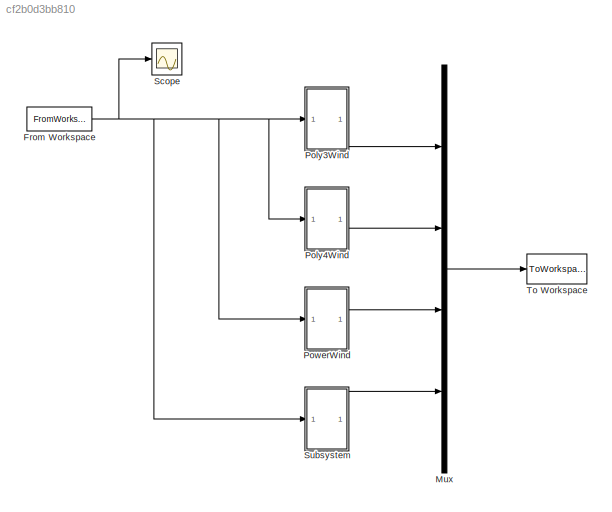
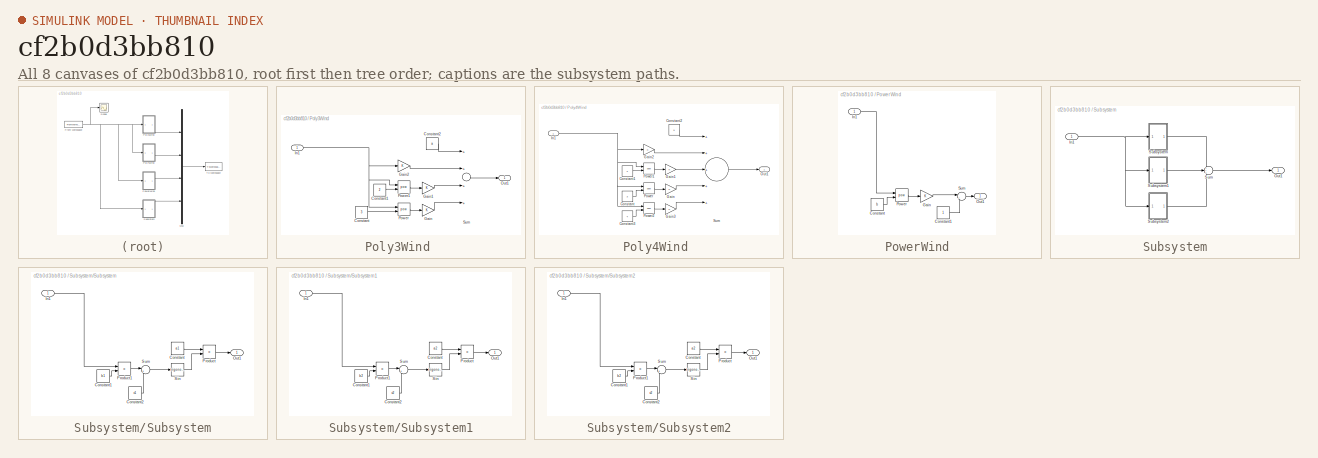
[diagram: thumbnail index - all 8 canvases of the model, root first then tree order]
MODEL slx_cf2b0d3bb810
KIND model
CONFIG AbsTol = auto
CONFIG EnableMultiTasking = off
CONFIG FixedStep = 0.01
CONFIG MaxStep = auto
CONFIG MinStep = auto
CONFIG RelTol = 1e-3
CONFIG SampleTimeConstraint = Unconstrained
CONFIG Solver = FixedStepAuto
CONFIG SolverName = FixedStepAuto
CONFIG StartTime = 0.0
CONFIG StopTime = WIND(end,1)
BLOCK [FromWorkspace] From Workspace
  VariableName = WIND
  ZeroCross = on
BLOCK [Mux] Mux
  DisplayOption = bar
  Ports = [4, 1]
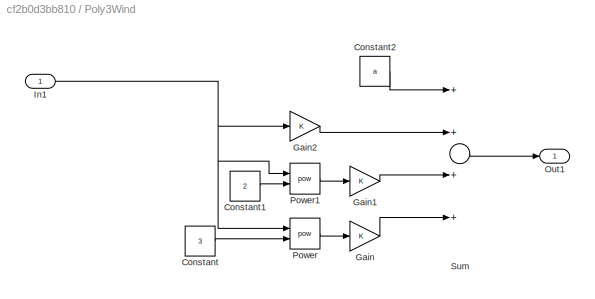
BLOCK [SubSystem] Poly3Wind 
  Ports = [1, 1]
  RequestExecContextInheritance = off
BLOCK [Constant] Poly3Wind /Constant
  Value = 3
BLOCK [Constant] Poly3Wind /Constant1
  Value = 2
BLOCK [Constant] Poly3Wind /Constant2
  Value = a
BLOCK [Gain] Poly3Wind /Gain
  OutDataTypeStr = Inherit: Inherit via internal rule
  ParamDataTypeStr = Inherit: Inherit via internal rule
  SaturateOnIntegerOverflow = off
BLOCK [Gain] Poly3Wind /Gain1
  OutDataTypeStr = Inherit: Inherit via internal rule
  ParamDataTypeStr = Inherit: Inherit via internal rule
  SaturateOnIntegerOverflow = off
BLOCK [Gain] Poly3Wind /Gain2
  OutDataTypeStr = Inherit: Inherit via internal rule
  ParamDataTypeStr = Inherit: Inherit via internal rule
  SaturateOnIntegerOverflow = off
BLOCK [Inport] Poly3Wind /In1
  IconDisplay = Port number
BLOCK [Outport] Poly3Wind /Out1
  IconDisplay = Port number
BLOCK [Math] Poly3Wind /Power
  Operator = pow
  Ports = [2, 1]
BLOCK [Math] Poly3Wind /Power1
  Operator = pow
  Ports = [2, 1]
BLOCK [Sum] Poly3Wind /Sum
  InputSameDT = off
  Inputs = ++++
  OutDataTypeStr = Inherit: Inherit via internal rule
  Ports = [4, 1]
  SaturateOnIntegerOverflow = off
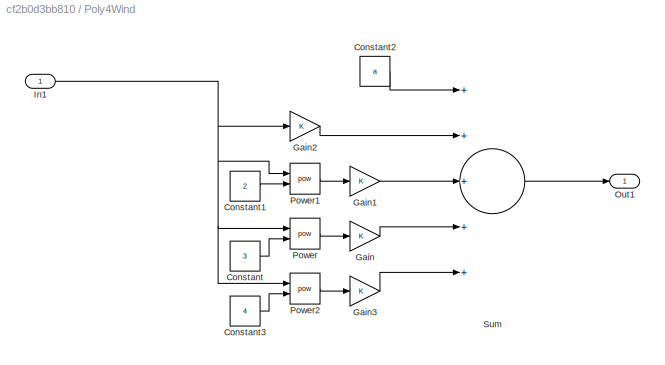
BLOCK [SubSystem] Poly4Wind 
  Ports = [1, 1]
  RequestExecContextInheritance = off
BLOCK [Constant] Poly4Wind /Constant
  Value = 3
BLOCK [Constant] Poly4Wind /Constant1
  Value = 2
BLOCK [Constant] Poly4Wind /Constant2
  Value = a
BLOCK [Constant] Poly4Wind /Constant3
  Value = 4
BLOCK [Gain] Poly4Wind /Gain
  OutDataTypeStr = Inherit: Inherit via internal rule
  ParamDataTypeStr = Inherit: Inherit via internal rule
  SaturateOnIntegerOverflow = off
BLOCK [Gain] Poly4Wind /Gain1
  OutDataTypeStr = Inherit: Inherit via internal rule
  ParamDataTypeStr = Inherit: Inherit via internal rule
  SaturateOnIntegerOverflow = off
BLOCK [Gain] Poly4Wind /Gain2
  OutDataTypeStr = Inherit: Inherit via internal rule
  ParamDataTypeStr = Inherit: Inherit via internal rule
  SaturateOnIntegerOverflow = off
BLOCK [Gain] Poly4Wind /Gain3
  OutDataTypeStr = Inherit: Inherit via internal rule
  ParamDataTypeStr = Inherit: Inherit via internal rule
  SaturateOnIntegerOverflow = off
BLOCK [Inport] Poly4Wind /In1
  IconDisplay = Port number
BLOCK [Outport] Poly4Wind /Out1
  IconDisplay = Port number
BLOCK [Math] Poly4Wind /Power
  Operator = pow
  Ports = [2, 1]
BLOCK [Math] Poly4Wind /Power1
  Operator = pow
  Ports = [2, 1]
BLOCK [Math] Poly4Wind /Power2
  Operator = pow
  Ports = [2, 1]
BLOCK [Sum] Poly4Wind /Sum
  InputSameDT = off
  Inputs = +++++
  OutDataTypeStr = Inherit: Inherit via internal rule
  Ports = [5, 1]
  SaturateOnIntegerOverflow = off
BLOCK [SubSystem] PowerWind
  Ports = [1, 1]
  RequestExecContextInheritance = off
BLOCK [Constant] PowerWind/Constant
  Value = b
BLOCK [Constant] PowerWind/Constant1
BLOCK [Gain] PowerWind/Gain
  OutDataTypeStr = Inherit: Inherit via internal rule
  ParamDataTypeStr = Inherit: Inherit via internal rule
  SaturateOnIntegerOverflow = off
BLOCK [Inport] PowerWind/In1
  IconDisplay = Port number
BLOCK [Outport] PowerWind/Out1
  IconDisplay = Port number
BLOCK [Math] PowerWind/Power
  Operator = pow
  Ports = [2, 1]
BLOCK [Sum] PowerWind/Sum
  IconShape = round
  InputSameDT = off
  Inputs = |++
  OutDataTypeStr = Inherit: Inherit via internal rule
  Ports = [2, 1]
  SaturateOnIntegerOverflow = off
BLOCK [Scope] Scope
  Floating = off
  NumInputPorts = 1
  Ports = [1]
  ScopeSpecificationString = Simulink.scopes.TimeScopeBlockCfg('CurrentConfiguration', extmgr.ConfigurationSet(extmgr.Configuration('Core','General UI',true),extmgr.Configuration('Core','Source UI',true),extmgr.Configuration('Sources','WiredSimulink',true),extmgr.Configuration('Visuals','Time Domain',true,'SerializedDisplays',{struct('MinYLimReal','109.5204','MaxYLimReal','285.61843','YLabelReal','','MinYLimMag','109.5204','M...<+1373ch>
BLOCK [SubSystem] Subsystem
  Ports = [1, 1]
  RequestExecContextInheritance = off
BLOCK [Inport] Subsystem/In1
  IconDisplay = Port number
BLOCK [Outport] Subsystem/Out1
  IconDisplay = Port number
BLOCK [SubSystem] Subsystem/Subsystem
  Ports = [1, 1]
  RequestExecContextInheritance = off
BLOCK [Constant] Subsystem/Subsystem/Constant
  Value = a1
BLOCK [Constant] Subsystem/Subsystem/Constant1
  Value = b1
BLOCK [Constant] Subsystem/Subsystem/Constant2
  Value = c1
BLOCK [Inport] Subsystem/Subsystem/In1
  IconDisplay = Port number
BLOCK [Outport] Subsystem/Subsystem/Out1
  IconDisplay = Port number
BLOCK [Product] Subsystem/Subsystem/Product
  InputSameDT = off
  OutDataTypeStr = Inherit: Inherit via internal rule
  Ports = [2, 1]
  RndMeth = Floor
  SaturateOnIntegerOverflow = off
BLOCK [Product] Subsystem/Subsystem/Product1
  InputSameDT = off
  OutDataTypeStr = Inherit: Inherit via internal rule
  Ports = [2, 1]
  RndMeth = Floor
  SaturateOnIntegerOverflow = off
BLOCK [Trigonometry] Subsystem/Subsystem/Sin
  Ports = [1, 1]
BLOCK [Sum] Subsystem/Subsystem/Sum
  IconShape = round
  InputSameDT = off
  Inputs = |++
  OutDataTypeStr = Inherit: Inherit via internal rule
  Ports = [2, 1]
  SaturateOnIntegerOverflow = off
BLOCK [SubSystem] Subsystem/Subsystem1
  Ports = [1, 1]
  RequestExecContextInheritance = off
BLOCK [Constant] Subsystem/Subsystem1/Constant
  Value = a2
BLOCK [Constant] Subsystem/Subsystem1/Constant1
  Value = b2
BLOCK [Constant] Subsystem/Subsystem1/Constant2
  Value = c2
BLOCK [Inport] Subsystem/Subsystem1/In1
  IconDisplay = Port number
BLOCK [Outport] Subsystem/Subsystem1/Out1
  IconDisplay = Port number
BLOCK [Product] Subsystem/Subsystem1/Product
  InputSameDT = off
  OutDataTypeStr = Inherit: Inherit via internal rule
  Ports = [2, 1]
  RndMeth = Floor
  SaturateOnIntegerOverflow = off
BLOCK [Product] Subsystem/Subsystem1/Product1
  InputSameDT = off
  OutDataTypeStr = Inherit: Inherit via internal rule
  Ports = [2, 1]
  RndMeth = Floor
  SaturateOnIntegerOverflow = off
BLOCK [Trigonometry] Subsystem/Subsystem1/Sin
  Ports = [1, 1]
BLOCK [Sum] Subsystem/Subsystem1/Sum
  IconShape = round
  InputSameDT = off
  Inputs = |++
  OutDataTypeStr = Inherit: Inherit via internal rule
  Ports = [2, 1]
  SaturateOnIntegerOverflow = off
BLOCK [SubSystem] Subsystem/Subsystem2
  Ports = [1, 1]
  RequestExecContextInheritance = off
BLOCK [Constant] Subsystem/Subsystem2/Constant
  Value = a2
BLOCK [Constant] Subsystem/Subsystem2/Constant1
  Value = b2
BLOCK [Constant] Subsystem/Subsystem2/Constant2
  Value = c2
BLOCK [Inport] Subsystem/Subsystem2/In1
  IconDisplay = Port number
BLOCK [Outport] Subsystem/Subsystem2/Out1
  IconDisplay = Port number
BLOCK [Product] Subsystem/Subsystem2/Product
  InputSameDT = off
  OutDataTypeStr = Inherit: Inherit via internal rule
  Ports = [2, 1]
  RndMeth = Floor
  SaturateOnIntegerOverflow = off
BLOCK [Product] Subsystem/Subsystem2/Product1
  InputSameDT = off
  OutDataTypeStr = Inherit: Inherit via internal rule
  Ports = [2, 1]
  RndMeth = Floor
  SaturateOnIntegerOverflow = off
BLOCK [Trigonometry] Subsystem/Subsystem2/Sin
  Ports = [1, 1]
BLOCK [Sum] Subsystem/Subsystem2/Sum
  IconShape = round
  InputSameDT = off
  Inputs = |++
  OutDataTypeStr = Inherit: Inherit via internal rule
  Ports = [2, 1]
  SaturateOnIntegerOverflow = off
BLOCK [Sum] Subsystem/Sum
  IconShape = round
  InputSameDT = off
  Inputs = +++
  OutDataTypeStr = Inherit: Inherit via internal rule
  Ports = [3, 1]
  SaturateOnIntegerOverflow = off
BLOCK [ToWorkspace] To Workspace
  MaxDataPoints = inf
  Ports = [1]
  SampleTime = -1
  Save2DSignal = 3-D array (concatenate along third dimension)
  VariableName = simout
NET From Workspace:1 -> Poly3Wind :1, Poly4Wind :1, PowerWind:1, Scope:1, Subsystem:1
LINE Mux:1 -> To Workspace:1
LINE Poly3Wind /Constant1:1 -> Poly3Wind /Power1:2
LINE Poly3Wind /Constant2:1 -> Poly3Wind /Sum:1
LINE Poly3Wind /Constant:1 -> Poly3Wind /Power:2
LINE Poly3Wind /Gain1:1 -> Poly3Wind /Sum:3
LINE Poly3Wind /Gain2:1 -> Poly3Wind /Sum:2
LINE Poly3Wind /Gain:1 -> Poly3Wind /Sum:4
NET Poly3Wind /In1:1 -> Poly3Wind /Gain2:1, Poly3Wind /Power1:1, Poly3Wind /Power:1
LINE Poly3Wind /Power1:1 -> Poly3Wind /Gain1:1
LINE Poly3Wind /Power:1 -> Poly3Wind /Gain:1
LINE Poly3Wind /Sum:1 -> Poly3Wind /Out1:1
LINE Poly3Wind :1 -> Mux:1
LINE Poly4Wind /Constant1:1 -> Poly4Wind /Power1:2
LINE Poly4Wind /Constant2:1 -> Poly4Wind /Sum:1
LINE Poly4Wind /Constant3:1 -> Poly4Wind /Power2:2
LINE Poly4Wind /Constant:1 -> Poly4Wind /Power:2
LINE Poly4Wind /Gain1:1 -> Poly4Wind /Sum:3
LINE Poly4Wind /Gain2:1 -> Poly4Wind /Sum:2
LINE Poly4Wind /Gain3:1 -> Poly4Wind /Sum:5
LINE Poly4Wind /Gain:1 -> Poly4Wind /Sum:4
NET Poly4Wind /In1:1 -> Poly4Wind /Gain2:1, Poly4Wind /Power1:1, Poly4Wind /Power2:1, Poly4Wind /Power:1
LINE Poly4Wind /Power1:1 -> Poly4Wind /Gain1:1
LINE Poly4Wind /Power2:1 -> Poly4Wind /Gain3:1
LINE Poly4Wind /Power:1 -> Poly4Wind /Gain:1
LINE Poly4Wind /Sum:1 -> Poly4Wind /Out1:1
LINE Poly4Wind :1 -> Mux:2
LINE PowerWind/Constant1:1 -> PowerWind/Sum:2
LINE PowerWind/Constant:1 -> PowerWind/Power:2
LINE PowerWind/Gain:1 -> PowerWind/Sum:1
LINE PowerWind/In1:1 -> PowerWind/Power:1
LINE PowerWind/Power:1 -> PowerWind/Gain:1
LINE PowerWind/Sum:1 -> PowerWind/Out1:1
LINE PowerWind:1 -> Mux:3
NET Subsystem/In1:1 -> Subsystem/Subsystem1:1, Subsystem/Subsystem2:1, Subsystem/Subsystem:1
LINE Subsystem/Subsystem/Constant1:1 -> Subsystem/Subsystem/Product1:2
LINE Subsystem/Subsystem/Constant2:1 -> Subsystem/Subsystem/Sum:2
LINE Subsystem/Subsystem/Constant:1 -> Subsystem/Subsystem/Product:1
LINE Subsystem/Subsystem/In1:1 -> Subsystem/Subsystem/Product1:1
LINE Subsystem/Subsystem/Product1:1 -> Subsystem/Subsystem/Sum:1
LINE Subsystem/Subsystem/Product:1 -> Subsystem/Subsystem/Out1:1
LINE Subsystem/Subsystem/Sin:1 -> Subsystem/Subsystem/Product:2
LINE Subsystem/Subsystem/Sum:1 -> Subsystem/Subsystem/Sin:1
LINE Subsystem/Subsystem1/Constant1:1 -> Subsystem/Subsystem1/Product1:2
LINE Subsystem/Subsystem1/Constant2:1 -> Subsystem/Subsystem1/Sum:2
LINE Subsystem/Subsystem1/Constant:1 -> Subsystem/Subsystem1/Product:1
LINE Subsystem/Subsystem1/In1:1 -> Subsystem/Subsystem1/Product1:1
LINE Subsystem/Subsystem1/Product1:1 -> Subsystem/Subsystem1/Sum:1
LINE Subsystem/Subsystem1/Product:1 -> Subsystem/Subsystem1/Out1:1
LINE Subsystem/Subsystem1/Sin:1 -> Subsystem/Subsystem1/Product:2
LINE Subsystem/Subsystem1/Sum:1 -> Subsystem/Subsystem1/Sin:1
LINE Subsystem/Subsystem1:1 -> Subsystem/Sum:2
LINE Subsystem/Subsystem2/Constant1:1 -> Subsystem/Subsystem2/Product1:2
LINE Subsystem/Subsystem2/Constant2:1 -> Subsystem/Subsystem2/Sum:2
LINE Subsystem/Subsystem2/Constant:1 -> Subsystem/Subsystem2/Product:1
LINE Subsystem/Subsystem2/In1:1 -> Subsystem/Subsystem2/Product1:1
LINE Subsystem/Subsystem2/Product1:1 -> Subsystem/Subsystem2/Sum:1
LINE Subsystem/Subsystem2/Product:1 -> Subsystem/Subsystem2/Out1:1
LINE Subsystem/Subsystem2/Sin:1 -> Subsystem/Subsystem2/Product:2
LINE Subsystem/Subsystem2/Sum:1 -> Subsystem/Subsystem2/Sin:1
LINE Subsystem/Subsystem2:1 -> Subsystem/Sum:3
LINE Subsystem/Subsystem:1 -> Subsystem/Sum:1
LINE Subsystem/Sum:1 -> Subsystem/Out1:1
LINE Subsystem:1 -> Mux:4
note: NET lines group one-source signal fan-out (src -> all destinations, sorted); 1:1 wires keep LINE
